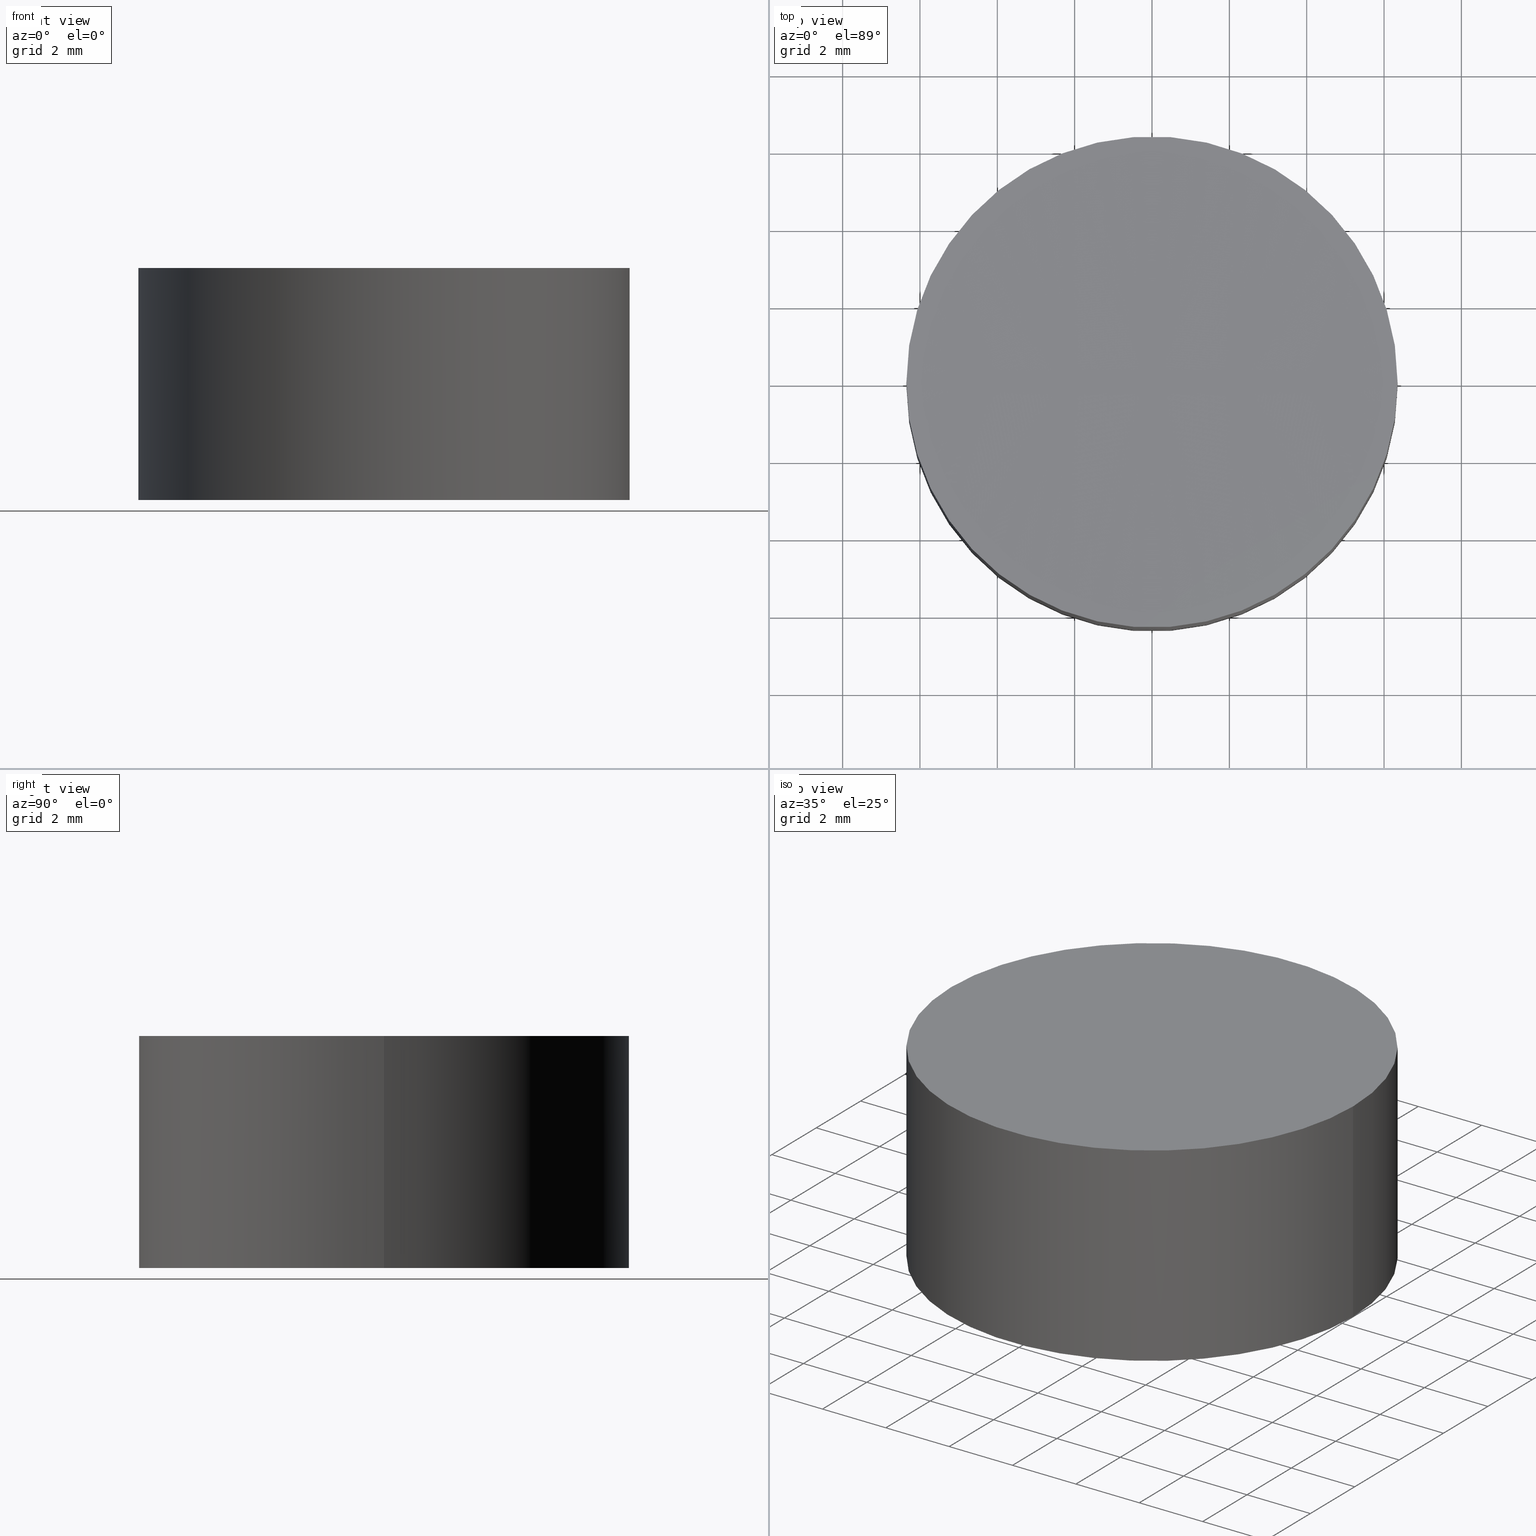
[diagram: canonical four-view strip — front | top / right | iso, engineering-drawing reading convention]
A machine part, canonical four-view strip (front | top / right | iso — engineering-drawing reading convention). The complete STEP part file that produces these views, byte-faithful:
ISO-10303-21;
HEADER;
FILE_DESCRIPTION (( 'STEP AP203' ),
    '1' );
FILE_NAME ('010-1130T6_UVFS_PCV_window.STEP',
    '2021-02-25T10:39:14',
    ( '' ),
    ( '' ),
    'SwSTEP 2.0',
    'SolidWorks 2019',
    '' );
FILE_SCHEMA (( 'CONFIG_CONTROL_DESIGN' ));
ENDSEC;

DATA;
#1 = AXIS2_PLACEMENT_3D ( 'NONE', #110, #170, #178 ) ;
#2 = DIRECTION ( 'NONE',  ( -0.000000000000000000, -0.000000000000000000, -1.000000000000000000 ) ) ;
#3 = PRODUCT_DEFINITION_FORMATION_WITH_SPECIFIED_SOURCE ( 'ANY', '', #191, .NOT_KNOWN. ) ;
#4 = CARTESIAN_POINT ( 'NONE',  ( -6.349999999999999645, 0.000000000000000000, 6.000000000000000000 ) ) ;
#5 = ADVANCED_FACE ( 'NONE', ( #52 ), #176, .F. ) ;
#6 = COORDINATED_UNIVERSAL_TIME_OFFSET ( 2, 0, .AHEAD. ) ;
#7 = PERSON_AND_ORGANIZATION_ROLE ( 'classification_officer' ) ;
#8 = AXIS2_PLACEMENT_3D ( 'NONE', #89, #74, #131 ) ;
#9 = DATE_TIME_ROLE ( 'classification_date' ) ;
#10 = PERSON_AND_ORGANIZATION_ROLE ( 'creator' ) ;
#11 = FACE_OUTER_BOUND ( 'NONE', #174, .T. ) ;
#12 = PERSON ( 'UNSPECIFIED', 'UNSPECIFIED', 'UNSPECIFIED', ('UNSPECIFIED'), ('UNSPECIFIED'), ('UNSPECIFIED') ) ;
#13 = CIRCLE ( 'NONE', #17, 6.349999999999999645 ) ;
#14 = SPHERICAL_SURFACE ( 'NONE', #90, 3000.000000000000000 ) ;
#15 = DIRECTION ( 'NONE',  ( -0.000000000000000000, -0.000000000000000000, -1.000000000000000000 ) ) ;
#16 = LOCAL_TIME ( 12, 39, 14.00000000000000000, #69 ) ;
#17 = AXIS2_PLACEMENT_3D ( 'NONE', #106, #133, #57 ) ;
#18 = LINE ( 'NONE', #4, #100 ) ;
#19 = ORIENTED_EDGE ( 'NONE', *, *, #111, .F. ) ;
#20 = ORIENTED_EDGE ( 'NONE', *, *, #44, .T. ) ;
#21 = CALENDAR_DATE ( 2021, 25, 2 ) ;
#22 = ORIENTED_EDGE ( 'NONE', *, *, #44, .F. ) ;
#23 = DATE_AND_TIME ( #21, #28 ) ;
#24 = PERSON_AND_ORGANIZATION ( #12, #103 ) ;
#25 = DIRECTION ( 'NONE',  ( 1.000000000000000000, 0.000000000000000000, 0.000000000000000000 ) ) ;
#26 = EDGE_CURVE ( 'NONE', #122, #37, #13, .T. ) ;
#27 = DIRECTION ( 'NONE',  ( -0.000000000000000000, -0.000000000000000000, -1.000000000000000000 ) ) ;
#28 = LOCAL_TIME ( 12, 39, 14.00000000000000000, #6 ) ;
#29 = CARTESIAN_POINT ( 'NONE',  ( 5.531931202551628353E-13, 0.000000000000000000, 5.993279575805754433 ) ) ;
#30 = DIRECTION ( 'NONE',  ( 1.000000000000000000, 0.000000000000000000, 0.000000000000000000 ) ) ;
#31 = APPLICATION_CONTEXT ( 'configuration controlled 3d designs of mechanical parts and assemblies' ) ;
#32 = ADVANCED_FACE ( 'NONE', ( #11 ), #116, .T. ) ;
#33 = CIRCLE ( 'NONE', #155, 6.350000000023658941 ) ;
#34 = ORIENTED_EDGE ( 'NONE', *, *, #168, .F. ) ;
#35 = CALENDAR_DATE ( 2021, 25, 2 ) ;
#36 = ORIENTED_EDGE ( 'NONE', *, *, #67, .F. ) ;
#37 = VERTEX_POINT ( 'NONE', #40 ) ;
#38 = APPROVAL_ROLE ( '' ) ;
#39 = PERSON_AND_ORGANIZATION ( #12, #103 ) ;
#40 = CARTESIAN_POINT ( 'NONE',  ( 6.349999999999999645, 7.776507174585692163E-16, 0.000000000000000000 ) ) ;
#41 = DIRECTION ( 'NONE',  ( -0.000000000000000000, -0.000000000000000000, -1.000000000000000000 ) ) ;
#42 = CARTESIAN_POINT ( 'NONE',  ( 3.694961003830599111E-13, 0.000000000000000000, 3005.993279575805900 ) ) ;
#43 = APPROVAL_PERSON_ORGANIZATION ( #24, #98, #132 ) ;
#44 = EDGE_CURVE ( 'NONE', #68, #73, #173, .T. ) ;
#45 = CARTESIAN_POINT ( 'NONE',  ( -6.350000000023290347, 0.000000000000000000, 5.999999999999783284 ) ) ;
#46 = CC_DESIGN_APPROVAL ( #70, ( #78 ) ) ;
#47 = EDGE_CURVE ( 'NONE', #126, #37, #62, .T. ) ;
#48 = ORIENTED_EDGE ( 'NONE', *, *, #183, .T. ) ;
#49 = ORIENTED_EDGE ( 'NONE', *, *, #168, .T. ) ;
#50 = PERSON_AND_ORGANIZATION_ROLE ( 'design_supplier' ) ;
#51 = PRODUCT_DEFINITION_SHAPE ( 'NONE', 'NONE',  #78 ) ;
#52 = FACE_OUTER_BOUND ( 'NONE', #160, .T. ) ;
#53 = APPROVAL_PERSON_ORGANIZATION ( #39, #152, #113 ) ;
#54 = ORIENTED_EDGE ( 'NONE', *, *, #47, .T. ) ;
#55 = ADVANCED_BREP_SHAPE_REPRESENTATION ( '010-1130T6_UVFS_PCV_window', ( #71, #1 ), #147 ) ;
#56 = ORIENTED_EDGE ( 'NONE', *, *, #143, .T. ) ;
#57 = DIRECTION ( 'NONE',  ( 1.000000000000000000, 0.000000000000000000, 0.000000000000000000 ) ) ;
#58 = APPLICATION_PROTOCOL_DEFINITION ( 'international standard', 'config_control_design', 1994, #76 ) ;
#59 = CC_DESIGN_DATE_AND_TIME_ASSIGNMENT ( #23, #9, ( #114 ) ) ;
#60 = SPHERICAL_SURFACE ( 'NONE', #165, 3000.000000000000000 ) ;
#61 = AXIS2_PLACEMENT_3D ( 'NONE', #82, #185, #139 ) ;
#62 = LINE ( 'NONE', #180, #144 ) ;
#63 = AXIS2_PLACEMENT_3D ( 'NONE', #105, #108, #25 ) ;
#64 =( NAMED_UNIT ( * ) PLANE_ANGLE_UNIT ( ) SI_UNIT ( $, .RADIAN. ) );
#65 = CC_DESIGN_PERSON_AND_ORGANIZATION_ASSIGNMENT ( #115, #10, ( #78 ) ) ;
#66 =( LENGTH_UNIT ( ) NAMED_UNIT ( * ) SI_UNIT ( .MILLI., .METRE. ) );
#67 = EDGE_CURVE ( 'NONE', #37, #122, #107, .T. ) ;
#68 = VERTEX_POINT ( 'NONE', #45 ) ;
#69 = COORDINATED_UNIVERSAL_TIME_OFFSET ( 2, 0, .AHEAD. ) ;
#70 = APPROVAL ( #117, 'UNSPECIFIED' ) ;
#71 = MANIFOLD_SOLID_BREP ( 'Cut-Revolve1', #80 ) ;
#72 = DATE_AND_TIME ( #35, #167 ) ;
#73 = VERTEX_POINT ( 'NONE', #29 ) ;
#74 = DIRECTION ( 'NONE',  ( 0.000000000000000000, 0.000000000000000000, 1.000000000000000000 ) ) ;
#75 = PERSON_AND_ORGANIZATION ( #12, #103 ) ;
#76 = APPLICATION_CONTEXT ( 'configuration controlled 3d designs of mechanical parts and assemblies' ) ;
#77 = COORDINATED_UNIVERSAL_TIME_OFFSET ( 2, 0, .AHEAD. ) ;
#78 = PRODUCT_DEFINITION ( 'UNKNOWN', '', #3, #134 ) ;
#79 = FACE_OUTER_BOUND ( 'NONE', #189, .T. ) ;
#80 = CLOSED_SHELL ( 'NONE', ( #124, #156, #32, #5, #94 ) ) ;
#81 = CC_DESIGN_DATE_AND_TIME_ASSIGNMENT ( #129, #99, ( #78 ) ) ;
#82 = CARTESIAN_POINT ( 'NONE',  ( 3.694961003830599111E-13, 0.000000000000000000, 3005.993279575805900 ) ) ;
#83 = CC_DESIGN_APPROVAL ( #152, ( #114 ) ) ;
#84 = ORIENTED_EDGE ( 'NONE', *, *, #47, .F. ) ;
#85 = PERSON_AND_ORGANIZATION_ROLE ( 'creator' ) ;
#86 = AXIS2_PLACEMENT_3D ( 'NONE', #150, #199, #184 ) ;
#87 = ORIENTED_EDGE ( 'NONE', *, *, #183, .F. ) ;
#88 = PERSON_AND_ORGANIZATION ( #12, #103 ) ;
#89 = CARTESIAN_POINT ( 'NONE',  ( 0.000000000000000000, 0.000000000000000000, 0.000000000000000000 ) ) ;
#90 = AXIS2_PLACEMENT_3D ( 'NONE', #42, #118, #138 ) ;
#91 = CARTESIAN_POINT ( 'NONE',  ( 0.000000000000000000, 0.000000000000000000, 6.000000000000000000 ) ) ;
#92 = AXIS2_PLACEMENT_3D ( 'NONE', #171, #15, #30 ) ;
#93 = DIRECTION ( 'NONE',  ( -1.000000000000000000, 0.000000000000000000, 0.000000000000000000 ) ) ;
#94 = ADVANCED_FACE ( 'NONE', ( #104 ), #14, .F. ) ;
#95 = CARTESIAN_POINT ( 'NONE',  ( 0.000000000000000000, 0.000000000000000000, 6.000000000000000000 ) ) ;
#96 = CC_DESIGN_PERSON_AND_ORGANIZATION_ASSIGNMENT ( #163, #7, ( #114 ) ) ;
#97 = APPROVAL_STATUS ( 'not_yet_approved' ) ;
#98 = APPROVAL ( #97, 'UNSPECIFIED' ) ;
#99 = DATE_TIME_ROLE ( 'creation_date' ) ;
#100 = VECTOR ( 'NONE', #142, 1000.000000000000000 ) ;
#101 = ORIENTED_EDGE ( 'NONE', *, *, #67, .T. ) ;
#102 = APPLICATION_PROTOCOL_DEFINITION ( 'international standard', 'config_control_design', 1994, #31 ) ;
#103 = ORGANIZATION ( 'UNSPECIFIED', 'UNSPECIFIED', '' ) ;
#104 = FACE_OUTER_BOUND ( 'NONE', #128, .T. ) ;
#105 = CARTESIAN_POINT ( 'NONE',  ( 0.000000000000000000, 0.000000000000000000, 0.000000000000000000 ) ) ;
#106 = CARTESIAN_POINT ( 'NONE',  ( 0.000000000000000000, 0.000000000000000000, 0.000000000000000000 ) ) ;
#107 = CIRCLE ( 'NONE', #63, 6.349999999999999645 ) ;
#108 = DIRECTION ( 'NONE',  ( 0.000000000000000000, 0.000000000000000000, 1.000000000000000000 ) ) ;
#109 = CC_DESIGN_PERSON_AND_ORGANIZATION_ASSIGNMENT ( #75, #197, ( #191 ) ) ;
#110 = CARTESIAN_POINT ( 'NONE',  ( 0.000000000000000000, 0.000000000000000000, 0.000000000000000000 ) ) ;
#111 = EDGE_CURVE ( 'NONE', #126, #68, #33, .T. ) ;
#112 = APPROVAL_PERSON_ORGANIZATION ( #88, #70, #38 ) ;
#113 = APPROVAL_ROLE ( '' ) ;
#114 = SECURITY_CLASSIFICATION ( '', '', #146 ) ;
#115 = PERSON_AND_ORGANIZATION ( #12, #103 ) ;
#116 = CYLINDRICAL_SURFACE ( 'NONE', #141, 6.349999999999999645 ) ;
#117 = APPROVAL_STATUS ( 'not_yet_approved' ) ;
#118 = DIRECTION ( 'NONE',  ( 0.000000000000000000, -1.000000000000000000, -0.000000000000000000 ) ) ;
#119 = DIRECTION ( 'NONE',  ( -1.000000000000000000, 0.000000000000000000, 0.000000000000000000 ) ) ;
#120 = CYLINDRICAL_SURFACE ( 'NONE', #136, 6.349999999999999645 ) ;
#121 = CC_DESIGN_APPROVAL ( #98, ( #3 ) ) ;
#122 = VERTEX_POINT ( 'NONE', #201 ) ;
#123 = CIRCLE ( 'NONE', #61, 3000.000000000000455 ) ;
#124 = ADVANCED_FACE ( 'NONE', ( #79 ), #60, .F. ) ;
#125 = CALENDAR_DATE ( 2021, 25, 2 ) ;
#126 = VERTEX_POINT ( 'NONE', #198 ) ;
#127 = APPROVAL_DATE_TIME ( #72, #152 ) ;
#128 = EDGE_LOOP ( 'NONE', ( #22, #19, #48 ) ) ;
#129 = DATE_AND_TIME ( #145, #195 ) ;
#130 = CC_DESIGN_SECURITY_CLASSIFICATION ( #114, ( #3 ) ) ;
#131 = DIRECTION ( 'NONE',  ( 1.000000000000000000, 0.000000000000000000, -0.000000000000000000 ) ) ;
#132 = APPROVAL_ROLE ( '' ) ;
#133 = DIRECTION ( 'NONE',  ( 0.000000000000000000, 0.000000000000000000, 1.000000000000000000 ) ) ;
#134 = DESIGN_CONTEXT ( 'detailed design', #31, 'design' ) ;
#135 = MECHANICAL_CONTEXT ( 'NONE', #76, 'mechanical' ) ;
#136 = AXIS2_PLACEMENT_3D ( 'NONE', #95, #2, #119 ) ;
#137 = DIRECTION ( 'NONE',  ( 1.000000000000000000, 0.000000000000000000, 0.000000000000000000 ) ) ;
#138 = DIRECTION ( 'NONE',  ( 1.000000000000000000, 0.000000000000000000, 0.000000000000000000 ) ) ;
#139 = DIRECTION ( 'NONE',  ( 0.000000000000000000, 0.000000000000000000, 1.000000000000000000 ) ) ;
#140 = CARTESIAN_POINT ( 'NONE',  ( 3.694961003830599111E-13, 0.000000000000000000, 3005.993279575805900 ) ) ;
#141 = AXIS2_PLACEMENT_3D ( 'NONE', #91, #148, #93 ) ;
#142 = DIRECTION ( 'NONE',  ( -0.000000000000000000, -0.000000000000000000, -1.000000000000000000 ) ) ;
#143 = EDGE_CURVE ( 'NONE', #68, #122, #18, .T. ) ;
#144 = VECTOR ( 'NONE', #41, 1000.000000000000000 ) ;
#145 = CALENDAR_DATE ( 2021, 25, 2 ) ;
#146 = SECURITY_CLASSIFICATION_LEVEL ( 'unclassified' ) ;
#147 =( GEOMETRIC_REPRESENTATION_CONTEXT ( 3 ) GLOBAL_UNCERTAINTY_ASSIGNED_CONTEXT ( ( #186 ) ) GLOBAL_UNIT_ASSIGNED_CONTEXT ( ( #66, #64, #153 ) ) REPRESENTATION_CONTEXT ( 'NONE', 'WORKASPACE' ) );
#148 = DIRECTION ( 'NONE',  ( -0.000000000000000000, -0.000000000000000000, -1.000000000000000000 ) ) ;
#149 = APPROVAL_DATE_TIME ( #181, #70 ) ;
#150 = CARTESIAN_POINT ( 'NONE',  ( 3.694961003830599111E-13, 0.000000000000000000, 3005.993279575805900 ) ) ;
#151 = DIRECTION ( 'NONE',  ( 0.000000000000000000, -1.000000000000000000, -0.000000000000000000 ) ) ;
#152 = APPROVAL ( #190, 'UNSPECIFIED' ) ;
#153 =( NAMED_UNIT ( * ) SI_UNIT ( $, .STERADIAN. ) SOLID_ANGLE_UNIT ( ) );
#154 = DIRECTION ( 'NONE',  ( 1.000000000000000000, 0.000000000000000000, 0.000000000000000000 ) ) ;
#155 = AXIS2_PLACEMENT_3D ( 'NONE', #166, #27, #137 ) ;
#156 = ADVANCED_FACE ( 'NONE', ( #169 ), #120, .T. ) ;
#157 = ORIENTED_EDGE ( 'NONE', *, *, #26, .T. ) ;
#158 = EDGE_LOOP ( 'NONE', ( #49, #54, #101, #162 ) ) ;
#159 = COORDINATED_UNIVERSAL_TIME_OFFSET ( 2, 0, .AHEAD. ) ;
#160 = EDGE_LOOP ( 'NONE', ( #194, #36 ) ) ;
#161 = CALENDAR_DATE ( 2021, 25, 2 ) ;
#162 = ORIENTED_EDGE ( 'NONE', *, *, #143, .F. ) ;
#163 = PERSON_AND_ORGANIZATION ( #12, #103 ) ;
#164 = PERSON_AND_ORGANIZATION ( #12, #103 ) ;
#165 = AXIS2_PLACEMENT_3D ( 'NONE', #140, #151, #154 ) ;
#166 = CARTESIAN_POINT ( 'NONE',  ( 3.694961003830599111E-13, 0.000000000000000000, 5.999999999999783284 ) ) ;
#167 = LOCAL_TIME ( 12, 39, 14.00000000000000000, #175 ) ;
#168 = EDGE_CURVE ( 'NONE', #68, #126, #182, .T. ) ;
#169 = FACE_OUTER_BOUND ( 'NONE', #158, .T. ) ;
#170 = DIRECTION ( 'NONE',  ( 0.000000000000000000, 0.000000000000000000, 1.000000000000000000 ) ) ;
#171 = CARTESIAN_POINT ( 'NONE',  ( 3.694961003830599111E-13, 0.000000000000000000, 5.999999999999783284 ) ) ;
#172 = PRODUCT_RELATED_PRODUCT_CATEGORY ( 'detail', '', ( #191 ) ) ;
#173 = CIRCLE ( 'NONE', #86, 3000.000000000000000 ) ;
#174 = EDGE_LOOP ( 'NONE', ( #84, #192, #56, #157 ) ) ;
#175 = COORDINATED_UNIVERSAL_TIME_OFFSET ( 2, 0, .AHEAD. ) ;
#176 = PLANE ( 'NONE',  #8 ) ;
#177 = PERSON_AND_ORGANIZATION ( #12, #103 ) ;
#178 = DIRECTION ( 'NONE',  ( 1.000000000000000000, 0.000000000000000000, 0.000000000000000000 ) ) ;
#179 = APPROVAL_DATE_TIME ( #196, #98 ) ;
#180 = CARTESIAN_POINT ( 'NONE',  ( 6.349999999999999645, 7.776507174585692163E-16, 6.000000000000000000 ) ) ;
#181 = DATE_AND_TIME ( #125, #16 ) ;
#182 = CIRCLE ( 'NONE', #92, 6.350000000023658941 ) ;
#183 = EDGE_CURVE ( 'NONE', #126, #73, #123, .T. ) ;
#184 = DIRECTION ( 'NONE',  ( 1.000000000000000000, 1.224646799147353207E-16, 0.000000000000000000 ) ) ;
#185 = DIRECTION ( 'NONE',  ( 0.000000000000000000, 1.000000000000000000, -0.000000000000000000 ) ) ;
#186 = UNCERTAINTY_MEASURE_WITH_UNIT (LENGTH_MEASURE( 1.000000000000000082E-05 ), #66, 'distance_accuracy_value', 'NONE');
#187 = LOCAL_TIME ( 12, 39, 14.00000000000000000, #77 ) ;
#188 = CC_DESIGN_PERSON_AND_ORGANIZATION_ASSIGNMENT ( #164, #85, ( #3 ) ) ;
#189 = EDGE_LOOP ( 'NONE', ( #34, #20, #87 ) ) ;
#190 = APPROVAL_STATUS ( 'not_yet_approved' ) ;
#191 = PRODUCT ( '010-1130T6_UVFS_PCV_window', '010-1130T6_UVFS_PCV_window', '', ( #135 ) ) ;
#192 = ORIENTED_EDGE ( 'NONE', *, *, #111, .T. ) ;
#193 = SHAPE_DEFINITION_REPRESENTATION ( #51, #55 ) ;
#194 = ORIENTED_EDGE ( 'NONE', *, *, #26, .F. ) ;
#195 = LOCAL_TIME ( 12, 39, 14.00000000000000000, #159 ) ;
#196 = DATE_AND_TIME ( #161, #187 ) ;
#197 = PERSON_AND_ORGANIZATION_ROLE ( 'design_owner' ) ;
#198 = CARTESIAN_POINT ( 'NONE',  ( 6.350000000024028424, 7.776507174615119633E-16, 5.999999999999783284 ) ) ;
#199 = DIRECTION ( 'NONE',  ( 1.224646799147353207E-16, -1.000000000000000000, 0.000000000000000000 ) ) ;
#200 = CC_DESIGN_PERSON_AND_ORGANIZATION_ASSIGNMENT ( #177, #50, ( #3 ) ) ;
#201 = CARTESIAN_POINT ( 'NONE',  ( -6.349999999999999645, 0.000000000000000000, 0.000000000000000000 ) ) ;
ENDSEC;
END-ISO-10303-21;
